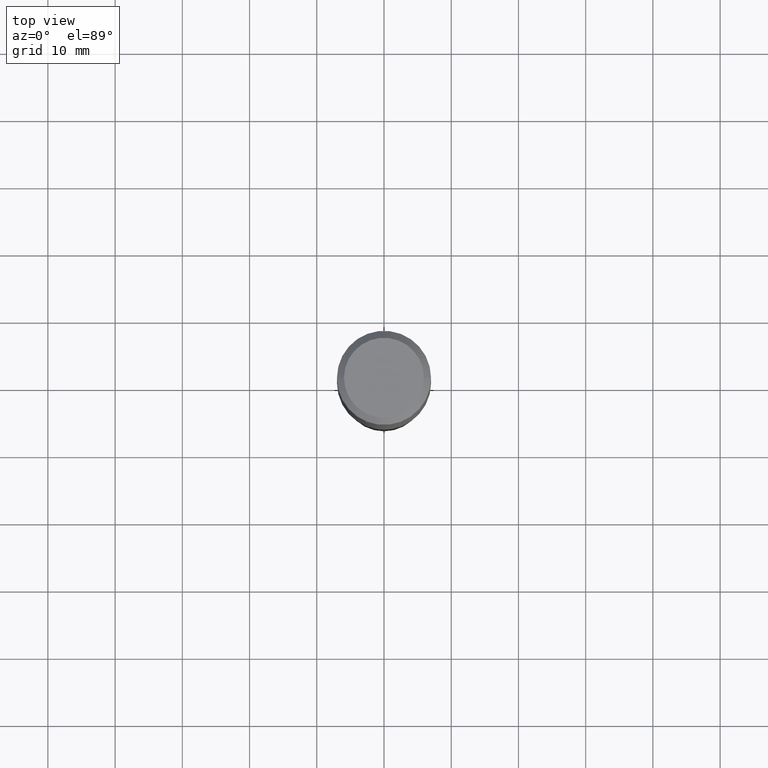
[diagram: clean part render]
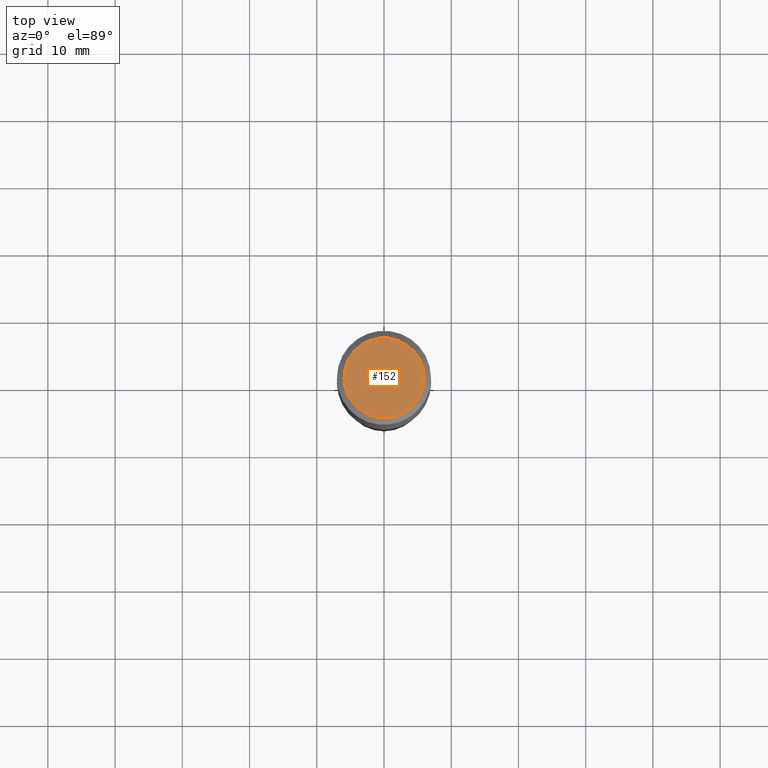
[diagram: same view with one face highlighted and labeled with its STEP entity id]
A machine part, top view. The second image highlights one B-rep face of the part: STEP entity #152.
In plain terms, the highlighted planar face has unit normal (0, -0, -1).
Its self-contained STEP definition (entity closure, byte-faithful):
#40 = AXIS2_PLACEMENT_3D ( 'NONE', #41, #454, #334 ) ;
#41 = CARTESIAN_POINT ( 'NONE',  ( -1.002970424325033577E-46, 1.431975951230896486E-32, 4.101342130344485961E-18 ) ) ;
#59 = ORIENTED_EDGE ( 'NONE', *, *, #306, .T. ) ;
#77 = CARTESIAN_POINT ( 'NONE',  ( -1.002970424325033577E-46, 1.431975951230896486E-32, 4.101342130344485961E-18 ) ) ;
#81 = CARTESIAN_POINT ( 'NONE',  ( -5.014852121625167883E-47, 7.159879756154482429E-33, 2.050671065172242981E-18 ) ) ;
#86 = EDGE_LOOP ( 'NONE', ( #59, #446 ) ) ;
#92 = VERTEX_POINT ( 'NONE', #468 ) ;
#109 = AXIS2_PLACEMENT_3D ( 'NONE', #77, #492, #151 ) ;
#128 = PLANE ( 'NONE',  #137 ) ;
#134 = CARTESIAN_POINT ( 'NONE',  ( -0.2342600000000000238, 1.707997756148671759E-15, 4.101342130332794026E-18 ) ) ;
#137 = AXIS2_PLACEMENT_3D ( 'NONE', #81, #162, #311 ) ;
#151 = DIRECTION ( 'NONE',  ( 1.000000000000000000, -6.982962677686267499E-15, 4.876157962347795834E-29 ) ) ;
#152 = ADVANCED_FACE ( 'NONE', ( #165 ), #128, .F. ) ;
#162 = DIRECTION ( 'NONE',  ( 2.438088387897960049E-29, -3.491481338843145188E-15, -1.000000000000000000 ) ) ;
#165 = FACE_OUTER_BOUND ( 'NONE', #86, .T. ) ;
#306 = EDGE_CURVE ( 'NONE', #384, #92, #416, .T. ) ;
#311 = DIRECTION ( 'NONE',  ( -1.000000000000000000, 6.982962677686265922E-15, -4.876176775795935793E-29 ) ) ;
#334 = DIRECTION ( 'NONE',  ( 1.000000000000000000, -6.982962677686267499E-15, 4.876157962347795834E-29 ) ) ;
#346 = EDGE_CURVE ( 'NONE', #92, #384, #437, .T. ) ;
#384 = VERTEX_POINT ( 'NONE', #134 ) ;
#416 = CIRCLE ( 'NONE', #40, 0.2342600000000000238 ) ;
#437 = CIRCLE ( 'NONE', #109, 0.2342600000000000238 ) ;
#446 = ORIENTED_EDGE ( 'NONE', *, *, #346, .T. ) ;
#454 = DIRECTION ( 'NONE',  ( -2.445468806185136597E-29, 3.491481338843145583E-15, 1.000000000000000000 ) ) ;
#468 = CARTESIAN_POINT ( 'NONE',  ( 0.2342600000000000238, -1.821115673845785155E-15, 4.101342130356573868E-18 ) ) ;
#492 = DIRECTION ( 'NONE',  ( -2.445468806185136597E-29, 3.491481338843145583E-15, 1.000000000000000000 ) ) ;